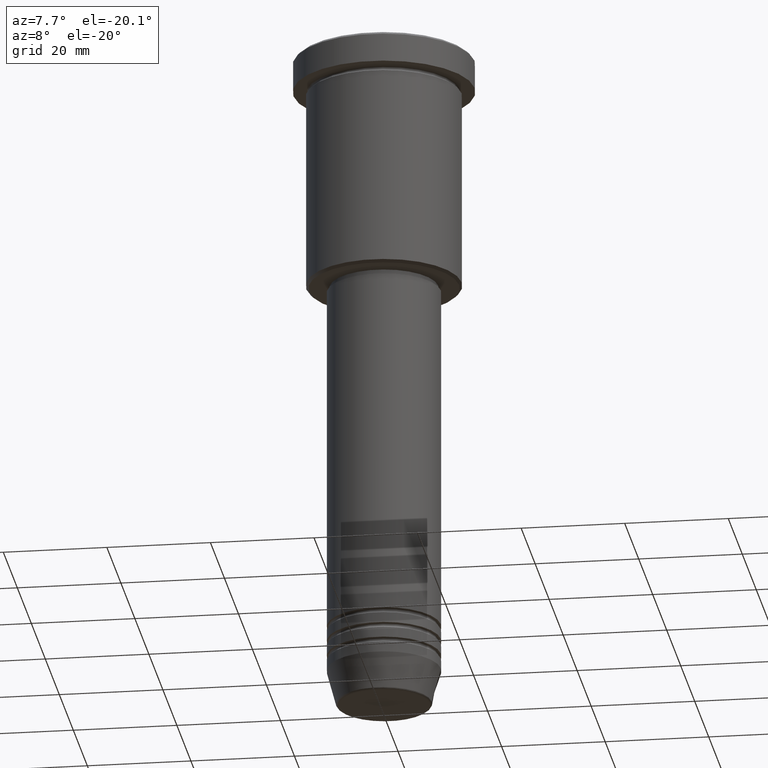
[diagram: clean part render]
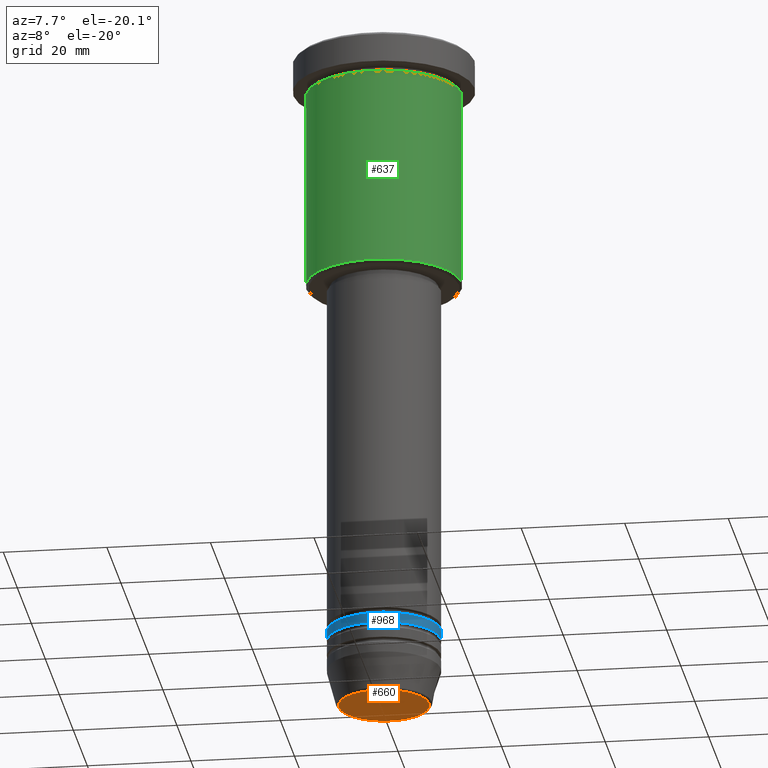
[diagram: same view with three faces highlighted in distinct colors, each labeled with its STEP entity id]
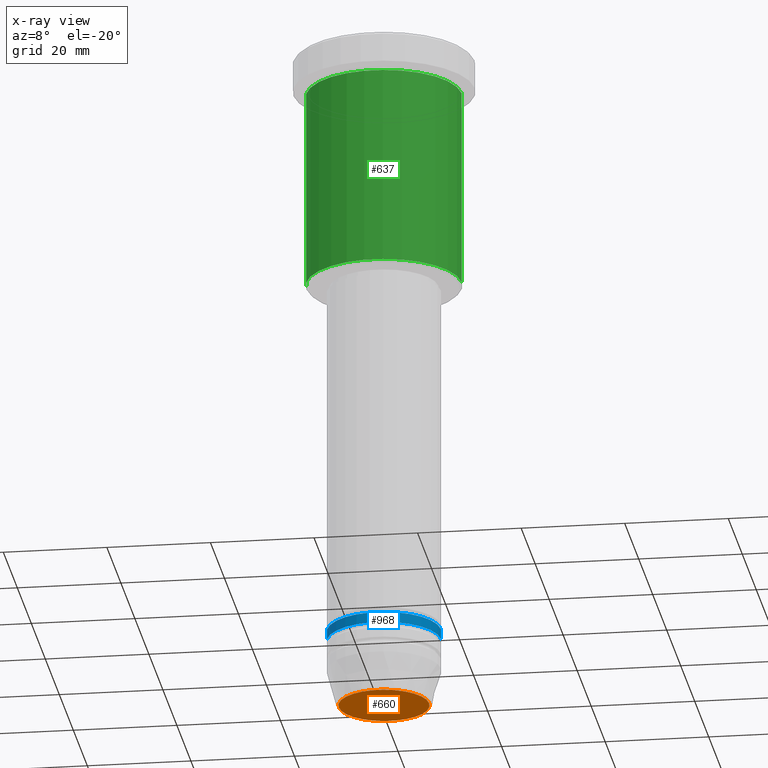
[diagram: x-ray of the same camera — body ghosted, the three highlighted faces saturated]
A machine part, auxiliary view with three faces highlighted in distinct colors.
The next image is the same camera in x-ray (body ghosted, the three faces saturated) — at least one of them is partly hidden behind the body in this view.
Their STEP definitions:

[orange] entity #660 — the highlighted planar face has unit normal (0, -0, 1).
#2 = ORIENTED_EDGE ( 'NONE', *, *, #831, .T. ) ;
#25 = PLANE ( 'NONE',  #487 ) ;
#31 = FACE_OUTER_BOUND ( 'NONE', #844, .T. ) ;
#46 = DIRECTION ( 'NONE',  ( 1.000000000000000000, 0.000000000000000000, 0.000000000000000000 ) ) ;
#48 = CARTESIAN_POINT ( 'NONE',  ( 8.740692158992652949, 0.000000000000000000, -131.0000000000000000 ) ) ;
#124 = CARTESIAN_POINT ( 'NONE',  ( 0.000000000000000000, 0.000000000000000000, -131.0000000000000000 ) ) ;
#160 = CIRCLE ( 'NONE', #1082, 8.740692158992652949 ) ;
#173 = DIRECTION ( 'NONE',  ( 1.000000000000000000, 0.000000000000000000, 0.000000000000000000 ) ) ;
#207 = CARTESIAN_POINT ( 'NONE',  ( -8.740692158992652949, 1.099999016768739259E-15, -131.0000000000000000 ) ) ;
#282 = CARTESIAN_POINT ( 'NONE',  ( 0.000000000000000000, 0.000000000000000000, -131.0000000000000000 ) ) ;
#390 = VERTEX_POINT ( 'NONE', #48 ) ;
#394 = DIRECTION ( 'NONE',  ( 0.000000000000000000, -0.000000000000000000, 1.000000000000000000 ) ) ;
#431 = AXIS2_PLACEMENT_3D ( 'NONE', #282, #912, #916 ) ;
#470 = DIRECTION ( 'NONE',  ( 0.000000000000000000, 0.000000000000000000, -1.000000000000000000 ) ) ;
#487 = AXIS2_PLACEMENT_3D ( 'NONE', #124, #394, #46 ) ;
#562 = EDGE_CURVE ( 'NONE', #390, #1037, #1142, .T. ) ;
#660 = ADVANCED_FACE ( 'NONE', ( #31 ), #25, .F. ) ;
#717 = ORIENTED_EDGE ( 'NONE', *, *, #562, .T. ) ;
#831 = EDGE_CURVE ( 'NONE', #1037, #390, #160, .T. ) ;
#844 = EDGE_LOOP ( 'NONE', ( #717, #2 ) ) ;
#912 = DIRECTION ( 'NONE',  ( 0.000000000000000000, 0.000000000000000000, -1.000000000000000000 ) ) ;
#916 = DIRECTION ( 'NONE',  ( 1.000000000000000000, 0.000000000000000000, 0.000000000000000000 ) ) ;
#1037 = VERTEX_POINT ( 'NONE', #207 ) ;
#1072 = CARTESIAN_POINT ( 'NONE',  ( 0.000000000000000000, 0.000000000000000000, -131.0000000000000000 ) ) ;
#1082 = AXIS2_PLACEMENT_3D ( 'NONE', #1072, #470, #173 ) ;
#1142 = CIRCLE ( 'NONE', #431, 8.740692158992652949 ) ;

[blue] entity #968 — the highlighted cylindrical surface (partial cylindrical patch) has radius 11 mm, axis along (-0, -0, 1).
#13 = CARTESIAN_POINT ( 'NONE',  ( 0.000000000000000000, 0.000000000000000000, 0.000000000000000000 ) ) ;
#29 = EDGE_CURVE ( 'NONE', #1150, #841, #35, .T. ) ;
#35 = CIRCLE ( 'NONE', #189, 11.00000000000000000 ) ;
#59 = CARTESIAN_POINT ( 'NONE',  ( 0.000000000000000000, 0.000000000000000000, -115.9999999999999716 ) ) ;
#145 = DIRECTION ( 'NONE',  ( -0.000000000000000000, -0.000000000000000000, 1.000000000000000000 ) ) ;
#153 = CARTESIAN_POINT ( 'NONE',  ( -11.00000000000000000, 1.347111479062088405E-15, -117.9999999999999716 ) ) ;
#177 = CARTESIAN_POINT ( 'NONE',  ( -11.00000000000000000, 1.347111479062088405E-15, -115.9999999999999716 ) ) ;
#186 = ORIENTED_EDGE ( 'NONE', *, *, #891, .F. ) ;
#189 = AXIS2_PLACEMENT_3D ( 'NONE', #969, #742, #1112 ) ;
#213 = VECTOR ( 'NONE', #145, 1000.000000000000000 ) ;
#217 = CARTESIAN_POINT ( 'NONE',  ( -11.00000000000000000, 1.347111479062088405E-15, 0.000000000000000000 ) ) ;
#279 = EDGE_CURVE ( 'NONE', #841, #319, #899, .T. ) ;
#301 = DIRECTION ( 'NONE',  ( 1.000000000000000000, 0.000000000000000000, 0.000000000000000000 ) ) ;
#319 = VERTEX_POINT ( 'NONE', #1068 ) ;
#348 = EDGE_LOOP ( 'NONE', ( #730, #1062, #1152, #186 ) ) ;
#408 = AXIS2_PLACEMENT_3D ( 'NONE', #59, #656, #838 ) ;
#480 = DIRECTION ( 'NONE',  ( -0.000000000000000000, -0.000000000000000000, 1.000000000000000000 ) ) ;
#506 = LINE ( 'NONE', #217, #213 ) ;
#596 = FACE_OUTER_BOUND ( 'NONE', #348, .T. ) ;
#615 = CARTESIAN_POINT ( 'NONE',  ( 11.00000000000000000, 0.000000000000000000, 0.000000000000000000 ) ) ;
#618 = CARTESIAN_POINT ( 'NONE',  ( 11.00000000000000000, 0.000000000000000000, -117.9999999999999716 ) ) ;
#644 = VECTOR ( 'NONE', #809, 1000.000000000000000 ) ;
#656 = DIRECTION ( 'NONE',  ( -0.000000000000000000, -0.000000000000000000, 1.000000000000000000 ) ) ;
#730 = ORIENTED_EDGE ( 'NONE', *, *, #738, .F. ) ;
#738 = EDGE_CURVE ( 'NONE', #1150, #882, #506, .T. ) ;
#742 = DIRECTION ( 'NONE',  ( -0.000000000000000000, -0.000000000000000000, 1.000000000000000000 ) ) ;
#745 = CIRCLE ( 'NONE', #408, 11.00000000000000000 ) ;
#809 = DIRECTION ( 'NONE',  ( -0.000000000000000000, -0.000000000000000000, 1.000000000000000000 ) ) ;
#838 = DIRECTION ( 'NONE',  ( 1.000000000000000000, 0.000000000000000000, 0.000000000000000000 ) ) ;
#841 = VERTEX_POINT ( 'NONE', #618 ) ;
#854 = CYLINDRICAL_SURFACE ( 'NONE', #869, 11.00000000000000000 ) ;
#869 = AXIS2_PLACEMENT_3D ( 'NONE', #13, #480, #301 ) ;
#882 = VERTEX_POINT ( 'NONE', #177 ) ;
#891 = EDGE_CURVE ( 'NONE', #882, #319, #745, .T. ) ;
#899 = LINE ( 'NONE', #615, #644 ) ;
#968 = ADVANCED_FACE ( 'NONE', ( #596 ), #854, .T. ) ;
#969 = CARTESIAN_POINT ( 'NONE',  ( 0.000000000000000000, 0.000000000000000000, -117.9999999999999716 ) ) ;
#1062 = ORIENTED_EDGE ( 'NONE', *, *, #29, .T. ) ;
#1068 = CARTESIAN_POINT ( 'NONE',  ( 11.00000000000000000, 0.000000000000000000, -115.9999999999999716 ) ) ;
#1112 = DIRECTION ( 'NONE',  ( 1.000000000000000000, 0.000000000000000000, 0.000000000000000000 ) ) ;
#1150 = VERTEX_POINT ( 'NONE', #153 ) ;
#1152 = ORIENTED_EDGE ( 'NONE', *, *, #279, .T. ) ;

[green] entity #637 — the highlighted cylindrical surface (partial cylindrical patch) has radius 15 mm, axis along (-0, -0, 1).
#72 = EDGE_CURVE ( 'NONE', #309, #949, #672, .T. ) ;
#78 = AXIS2_PLACEMENT_3D ( 'NONE', #402, #208, #587 ) ;
#115 = VECTOR ( 'NONE', #747, 1000.000000000000000 ) ;
#123 = VERTEX_POINT ( 'NONE', #895 ) ;
#139 = ORIENTED_EDGE ( 'NONE', *, *, #273, .F. ) ;
#208 = DIRECTION ( 'NONE',  ( -0.000000000000000000, -0.000000000000000000, 1.000000000000000000 ) ) ;
#209 = CIRCLE ( 'NONE', #885, 15.00000000000000000 ) ;
#273 = EDGE_CURVE ( 'NONE', #949, #1160, #585, .T. ) ;
#284 = VECTOR ( 'NONE', #856, 1000.000000000000000 ) ;
#288 = EDGE_CURVE ( 'NONE', #123, #1160, #650, .T. ) ;
#309 = VERTEX_POINT ( 'NONE', #1151 ) ;
#310 = AXIS2_PLACEMENT_3D ( 'NONE', #593, #948, #858 ) ;
#342 = EDGE_CURVE ( 'NONE', #309, #123, #209, .T. ) ;
#398 = CARTESIAN_POINT ( 'NONE',  ( 0.000000000000000000, 0.000000000000000000, -45.50000000000000000 ) ) ;
#400 = EDGE_LOOP ( 'NONE', ( #1147, #1073, #1099, #139 ) ) ;
#402 = CARTESIAN_POINT ( 'NONE',  ( 0.000000000000000000, 0.000000000000000000, -6.999999999999995559 ) ) ;
#491 = CYLINDRICAL_SURFACE ( 'NONE', #310, 15.00000000000000000 ) ;
#571 = CARTESIAN_POINT ( 'NONE',  ( -15.00000000000000000, 1.836970198721029589E-15, 0.000000000000000000 ) ) ;
#585 = CIRCLE ( 'NONE', #78, 15.00000000000000000 ) ;
#587 = DIRECTION ( 'NONE',  ( 1.000000000000000000, 0.000000000000000000, 0.000000000000000000 ) ) ;
#592 = DIRECTION ( 'NONE',  ( -0.000000000000000000, -0.000000000000000000, 1.000000000000000000 ) ) ;
#593 = CARTESIAN_POINT ( 'NONE',  ( 0.000000000000000000, 0.000000000000000000, 0.000000000000000000 ) ) ;
#637 = ADVANCED_FACE ( 'NONE', ( #1117 ), #491, .T. ) ;
#650 = LINE ( 'NONE', #1179, #115 ) ;
#672 = LINE ( 'NONE', #571, #284 ) ;
#747 = DIRECTION ( 'NONE',  ( -0.000000000000000000, -0.000000000000000000, 1.000000000000000000 ) ) ;
#795 = CARTESIAN_POINT ( 'NONE',  ( 15.00000000000000000, 0.000000000000000000, -6.999999999999995559 ) ) ;
#856 = DIRECTION ( 'NONE',  ( -0.000000000000000000, -0.000000000000000000, 1.000000000000000000 ) ) ;
#858 = DIRECTION ( 'NONE',  ( 1.000000000000000000, 0.000000000000000000, 0.000000000000000000 ) ) ;
#885 = AXIS2_PLACEMENT_3D ( 'NONE', #398, #592, #953 ) ;
#895 = CARTESIAN_POINT ( 'NONE',  ( 15.00000000000000000, 0.000000000000000000, -45.50000000000000000 ) ) ;
#948 = DIRECTION ( 'NONE',  ( -0.000000000000000000, -0.000000000000000000, 1.000000000000000000 ) ) ;
#949 = VERTEX_POINT ( 'NONE', #1028 ) ;
#953 = DIRECTION ( 'NONE',  ( -1.000000000000000000, 0.000000000000000000, 0.000000000000000000 ) ) ;
#1028 = CARTESIAN_POINT ( 'NONE',  ( -15.00000000000000000, 1.836970198721029589E-15, -6.999999999999995559 ) ) ;
#1073 = ORIENTED_EDGE ( 'NONE', *, *, #342, .T. ) ;
#1099 = ORIENTED_EDGE ( 'NONE', *, *, #288, .T. ) ;
#1117 = FACE_OUTER_BOUND ( 'NONE', #400, .T. ) ;
#1147 = ORIENTED_EDGE ( 'NONE', *, *, #72, .F. ) ;
#1151 = CARTESIAN_POINT ( 'NONE',  ( -15.00000000000000000, 1.836970198721029589E-15, -45.50000000000000000 ) ) ;
#1160 = VERTEX_POINT ( 'NONE', #795 ) ;
#1179 = CARTESIAN_POINT ( 'NONE',  ( 15.00000000000000000, 0.000000000000000000, 0.000000000000000000 ) ) ;